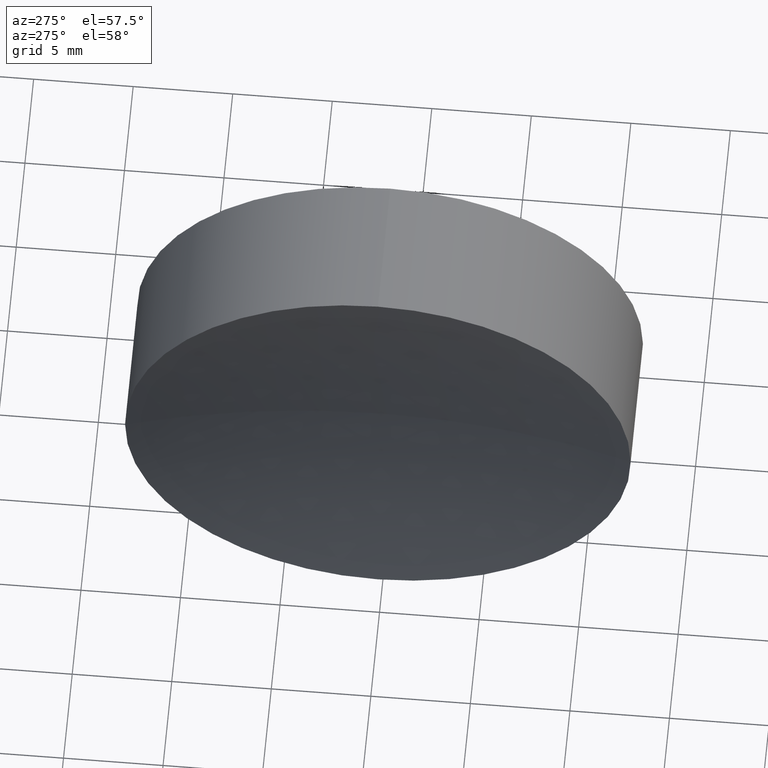
[diagram: clean part render]
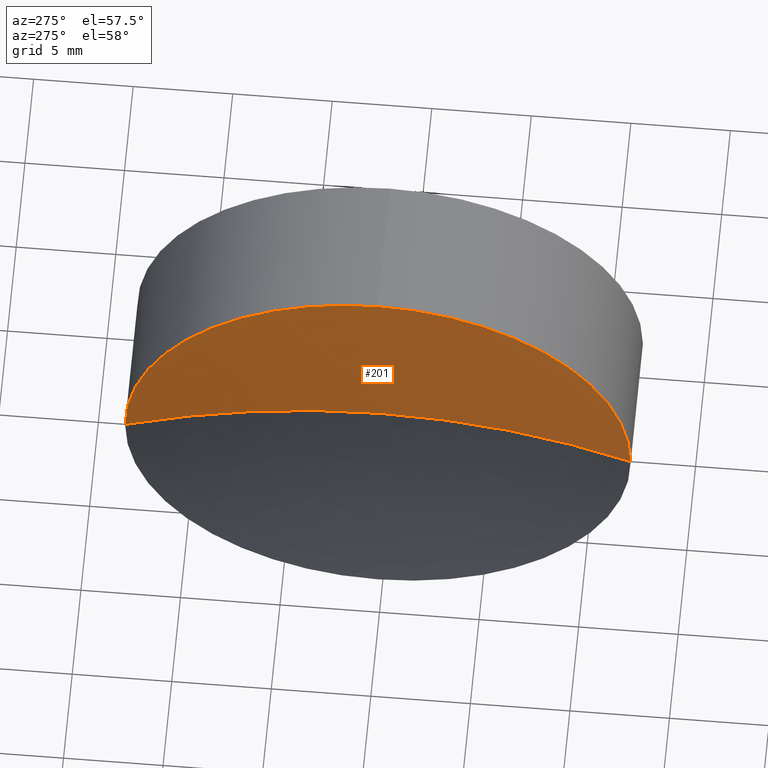
[diagram: same view with one face highlighted and labeled with its STEP entity id]
A machine part, auxiliary view. The second image highlights one B-rep face of the part: STEP entity #201.
In plain terms, the highlighted spherical surface has radius 46.6 mm.
Its self-contained STEP definition (entity closure, byte-faithful):
#3 = CARTESIAN_POINT ( 'NONE',  ( 118.3527034462293400, 65.22260287298738000, 0.0000000000000000000 ) ) ;
#8 = CARTESIAN_POINT ( 'NONE',  ( 71.75270344622933300, 65.22260287298738000, 0.0000000000000000000 ) ) ;
#10 = AXIS2_PLACEMENT_3D ( 'NONE', #69, #192, #208 ) ;
#14 = SPHERICAL_SURFACE ( 'NONE', #21, 46.60000000000000100 ) ;
#16 = VERTEX_POINT ( 'NONE', #217 ) ;
#21 = AXIS2_PLACEMENT_3D ( 'NONE', #8, #184, #149 ) ;
#30 = VERTEX_POINT ( 'NONE', #177 ) ;
#36 = AXIS2_PLACEMENT_3D ( 'NONE', #183, #199, #92 ) ;
#40 = DIRECTION ( 'NONE',  ( 0.0000000000000000000, 0.0000000000000000000, 1.000000000000000000 ) ) ;
#44 = ORIENTED_EDGE ( 'NONE', *, *, #141, .T. ) ;
#55 = DIRECTION ( 'NONE',  ( -1.000000000000000000, -0.0000000000000000000, -0.0000000000000000000 ) ) ;
#60 = CIRCLE ( 'NONE', #10, 46.60000000000000100 ) ;
#66 = VERTEX_POINT ( 'NONE', #3 ) ;
#69 = CARTESIAN_POINT ( 'NONE',  ( 71.75270344622933300, 65.22260287298738000, 0.0000000000000000000 ) ) ;
#79 = CARTESIAN_POINT ( 'NONE',  ( 116.5887380612574700, 65.22260287298739500, 0.0000000000000000000 ) ) ;
#81 = EDGE_CURVE ( 'NONE', #66, #30, #60, .T. ) ;
#92 = DIRECTION ( 'NONE',  ( 0.0000000000000000000, 0.0000000000000000000, 1.000000000000000000 ) ) ;
#93 = VERTEX_POINT ( 'NONE', #166 ) ;
#113 = DIRECTION ( 'NONE',  ( 0.0000000000000000000, 1.224646799147353200E-016, -1.000000000000000000 ) ) ;
#120 = AXIS2_PLACEMENT_3D ( 'NONE', #79, #55, #40 ) ;
#121 = CIRCLE ( 'NONE', #150, 46.60000000000000100 ) ;
#124 = ORIENTED_EDGE ( 'NONE', *, *, #81, .F. ) ;
#141 = EDGE_CURVE ( 'NONE', #16, #93, #164, .T. ) ;
#148 = CARTESIAN_POINT ( 'NONE',  ( 71.75270344622933300, 65.22260287298738000, 0.0000000000000000000 ) ) ;
#149 = DIRECTION ( 'NONE',  ( 0.0000000000000000000, 1.000000000000000000, 0.0000000000000000000 ) ) ;
#150 = AXIS2_PLACEMENT_3D ( 'NONE', #148, #113, #171 ) ;
#158 = CIRCLE ( 'NONE', #120, 12.69999999999997400 ) ;
#164 = CIRCLE ( 'NONE', #36, 12.69999999999997400 ) ;
#166 = CARTESIAN_POINT ( 'NONE',  ( 116.5887380612574700, 65.22260287298739500, 12.69999999999997400 ) ) ;
#168 = ORIENTED_EDGE ( 'NONE', *, *, #193, .T. ) ;
#171 = DIRECTION ( 'NONE',  ( 0.0000000000000000000, 1.000000000000000000, 1.224646799147353200E-016 ) ) ;
#177 = CARTESIAN_POINT ( 'NONE',  ( 116.5887380612574700, 77.92260287298735500, 0.0000000000000000000 ) ) ;
#183 = CARTESIAN_POINT ( 'NONE',  ( 116.5887380612574700, 65.22260287298739500, 0.0000000000000000000 ) ) ;
#184 = DIRECTION ( 'NONE',  ( 0.0000000000000000000, 0.0000000000000000000, -1.000000000000000000 ) ) ;
#187 = ORIENTED_EDGE ( 'NONE', *, *, #196, .T. ) ;
#192 = DIRECTION ( 'NONE',  ( 0.0000000000000000000, 0.0000000000000000000, 1.000000000000000000 ) ) ;
#193 = EDGE_CURVE ( 'NONE', #93, #30, #158, .T. ) ;
#196 = EDGE_CURVE ( 'NONE', #66, #16, #121, .T. ) ;
#199 = DIRECTION ( 'NONE',  ( -1.000000000000000000, -0.0000000000000000000, -0.0000000000000000000 ) ) ;
#201 = ADVANCED_FACE ( 'NONE', ( #210 ), #14, .F. ) ;
#208 = DIRECTION ( 'NONE',  ( 1.000000000000000000, 0.0000000000000000000, 0.0000000000000000000 ) ) ;
#210 = FACE_OUTER_BOUND ( 'NONE', #228, .T. ) ;
#217 = CARTESIAN_POINT ( 'NONE',  ( 116.5887380612574700, 52.52260287298741300, -1.555301434917133900E-015 ) ) ;
#228 = EDGE_LOOP ( 'NONE', ( #124, #187, #44, #168 ) ) ;